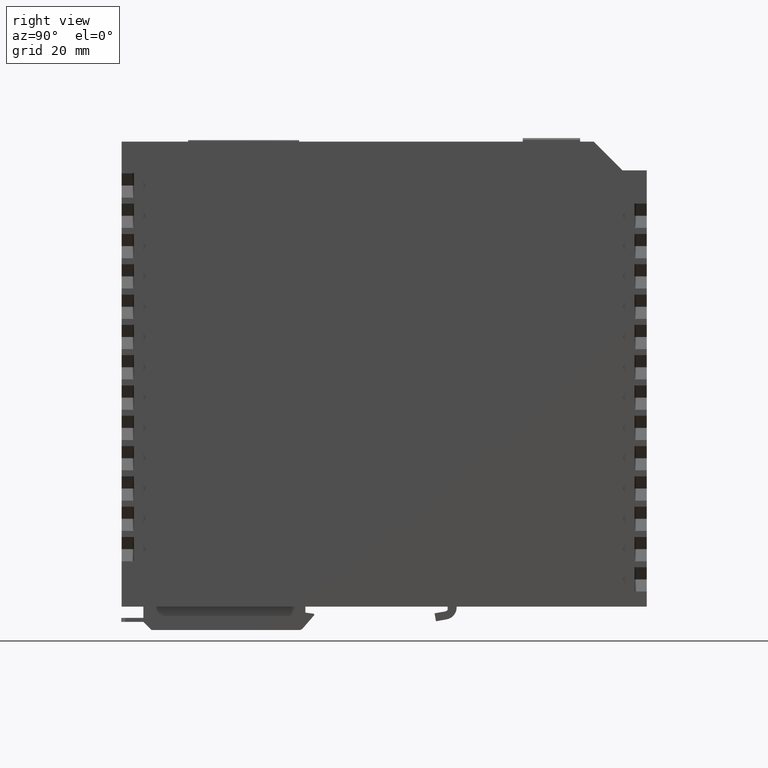
[diagram: clean part render]
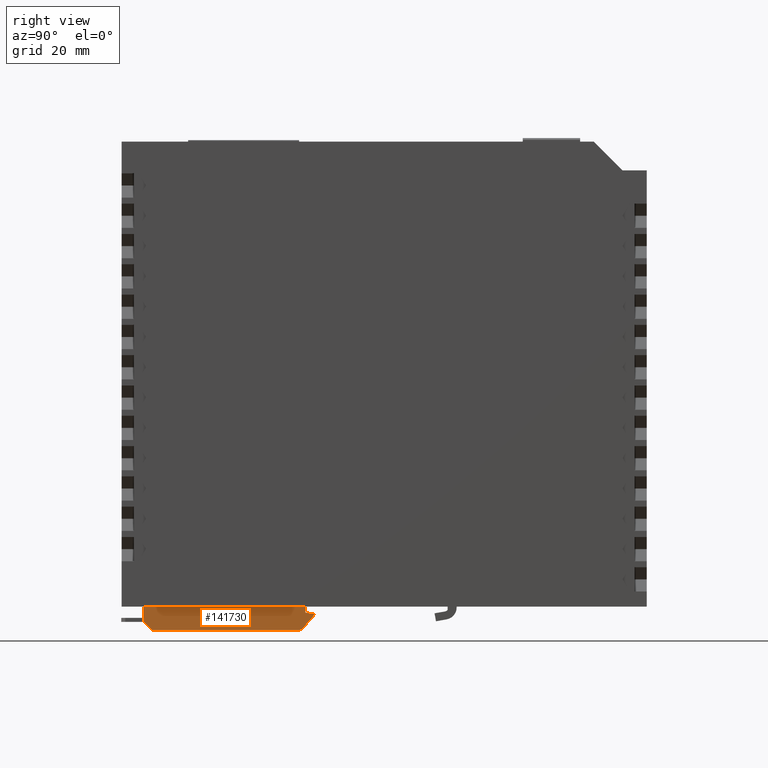
[diagram: same view with one face highlighted and labeled with its STEP entity id]
A machine part, right view. The second image highlights one B-rep face of the part: STEP entity #141730.
In plain terms, the highlighted face is a freeform B-spline surface patch.
Its self-contained STEP definition (entity closure, byte-faithful):
#54140=CARTESIAN_POINT('',(27.0000000000004,-528.747496616264,-114.));
#54150=CARTESIAN_POINT('',(27.0000000000004,425.538621778944,-114.));
#54160=B_SPLINE_CURVE_WITH_KNOTS('',1,(#54140,#54150),.UNSPECIFIED.,.F.,
.F.,(2,2),(-469.143059197604,485.143059197604),.UNSPECIFIED.);
#54170=CARTESIAN_POINT('',(27.0000000000004,-59.60443741866,-114.));
#54180=VERTEX_POINT('',#54170);
#54190=CARTESIAN_POINT('',(27.0000000000004,-19.5,-114.));
#54200=VERTEX_POINT('',#54190);
#54210=EDGE_CURVE('',#54180,#54200,#54160,.T.);
#132640=CARTESIAN_POINT('',(3.99999999990036,-20.2053255768933,
-119.426547152128));
#132650=CARTESIAN_POINT('',(7.9999999999337,-20.2053255768933,
-119.426547152128));
#132660=CARTESIAN_POINT('',(11.999999999967,-20.2053255768933,
-119.426547152128));
#132670=CARTESIAN_POINT('',(20.0000000000337,-20.2053255768933,
-119.426547152128));
#132680=CARTESIAN_POINT('',(24.0000000000671,-20.2053255768933,
-119.426547152128));
#132690=CARTESIAN_POINT('',(28.0000000001004,-20.2053255768933,
-119.426547152128));
#132700=CARTESIAN_POINT('',(3.99999999990033,-20.3983270335861,
-119.649705086431));
#132710=CARTESIAN_POINT('',(7.99999999993366,-20.3983270335861,
-119.649705086431));
#132720=CARTESIAN_POINT('',(11.999999999967,-20.3983270335861,
-119.649705086431));
#132730=CARTESIAN_POINT('',(20.0000000000337,-20.3983270335861,
-119.649705086431));
#132740=CARTESIAN_POINT('',(24.0000000000671,-20.3983270335861,
-119.649705086431));
#132750=CARTESIAN_POINT('',(28.0000000001004,-20.3983270335861,
-119.649705086431));
#132760=CARTESIAN_POINT('',(3.99999999990033,-20.6666480302474,
-119.772395219201));
#132770=CARTESIAN_POINT('',(7.99999999993367,-20.6666480302474,
-119.772395219201));
#132780=CARTESIAN_POINT('',(11.999999999967,-20.6666480302474,
-119.772395219201));
#132790=CARTESIAN_POINT('',(20.0000000000337,-20.6666480302474,
-119.772395219201));
#132800=CARTESIAN_POINT('',(24.0000000000671,-20.6666480302474,
-119.772395219201));
#132810=CARTESIAN_POINT('',(28.0000000001004,-20.6666480302474,
-119.772395219201));
#132820=CARTESIAN_POINT('',(3.99999999990037,-20.9616887493495,
-119.772395219201));
#132830=CARTESIAN_POINT('',(7.99999999993371,-20.9616887493495,
-119.772395219201));
#132840=CARTESIAN_POINT('',(11.999999999967,-20.9616887493495,
-119.772395219201));
#132850=CARTESIAN_POINT('',(20.0000000000337,-20.9616887493495,
-119.772395219201));
#132860=CARTESIAN_POINT('',(24.0000000000671,-20.9616887493495,
-119.772395219201));
#132870=CARTESIAN_POINT('',(28.0000000001004,-20.9616887493495,
-119.772395219201));
#132880=(BOUNDED_SURFACE() B_SPLINE_SURFACE(3,3,((#132640,#132700,
#132760,#132820),(#132650,#132710,#132770,#132830),(#132660,#132720,
#132780,#132840),(#132670,#132730,#132790,#132850),(#132680,#132740,
#132800,#132860),(#132690,#132750,#132810,#132870)),.UNSPECIFIED.,.F.,
.F.,.F.) B_SPLINE_SURFACE_WITH_KNOTS((4,2,4),(4,4),(40.1796465455698,
52.1796465456698,64.1796465457699),(0.,1.),.UNSPECIFIED.) 
GEOMETRIC_REPRESENTATION_ITEM() RATIONAL_B_SPLINE_SURFACE(((1.,
0.939624780104778,0.939624780104778,1.),(1.,0.939624780104778,
0.939624780104778,1.),(1.,0.939624780104777,0.939624780104777,1.),(1.,
0.939624780104776,0.939624780104776,1.),(1.,0.939624780104776,
0.939624780104776,1.),(1.,0.939624780104776,0.939624780104776,1.))) 
REPRESENTATION_ITEM('') SURFACE());
#133220=CARTESIAN_POINT('',(27.0000000000004,-20.9616887493495,
-119.772395219201));
#133230=VERTEX_POINT('',#133220);
#133260=CARTESIAN_POINT('',(27.0000000000004,-528.747496616264,
356.370663978403));
#133270=CARTESIAN_POINT('',(27.0000000000004,425.538621778944,
356.370663978403));
#133280=CARTESIAN_POINT('',(27.0000000000004,-528.747496616264,
-588.915454416804));
#133290=CARTESIAN_POINT('',(27.0000000000004,425.538621778944,
-588.915454416804));
#133300=B_SPLINE_SURFACE_WITH_KNOTS('',1,1,((#133260,#133280),(#133270,
#133290)),.UNSPECIFIED.,.F.,.F.,.F.,(2,2),(2,2),(-469.143059197604,
485.143059197604),(-467.643059197604,477.643059197604),.UNSPECIFIED.);
#133310=CARTESIAN_POINT('',(27.0000000000004,-20.9616887493495,
-119.772395219201));
#133320=CARTESIAN_POINT('',(27.0000000000004,-20.8904826533476,
-119.772395219201));
#133330=CARTESIAN_POINT('',(27.0000000000004,-20.8188771702838,
-119.764717332521));
#133340=CARTESIAN_POINT('',(27.0000000000004,-20.749106656404,
-119.749538429666));
#133350=CARTESIAN_POINT('',(27.0000000000004,-20.6794782370159,
-119.734390440136));
#133360=CARTESIAN_POINT('',(27.0000000000004,-20.6114546577506,
-119.711770974333));
#133370=CARTESIAN_POINT('',(27.0000000000004,-20.5465442061215,
-119.682150685372));
#133380=CARTESIAN_POINT('',(27.0000000000004,-20.481856599467,
-119.652632086236));
#133390=CARTESIAN_POINT('',(27.0000000000004,-20.419863552162,
-119.615959577434));
#133400=CARTESIAN_POINT('',(27.0000000000004,-20.362279654399,
-119.572838057191));
#133410=CARTESIAN_POINT('',(27.0000000000004,-20.3047146630363,
-119.529730694947));
#133420=CARTESIAN_POINT('',(27.0000000000004,-20.251901784006,
-119.480400891602));
#133430=CARTESIAN_POINT('',(27.0000000000004,-20.2053255768933,
-119.426547152128));
#133440=B_SPLINE_CURVE_WITH_KNOTS('',3,(#133310,#133320,#133330,#133340,
#133350,#133360,#133370,#133380,#133390,#133400,#133410,#133420,#133430)
,.UNSPECIFIED.,.F.,.F.,(4,3,3,3,4),(0.,0.214216695524372,
0.428101678621379,0.642762681892129,0.857735493942179),.UNSPECIFIED.);
#133450=SURFACE_CURVE('',#133440,(#132880,#133300),.CURVE_3D.);
#133460=CARTESIAN_POINT('',(27.0000000000004,-20.2053255768933,
-119.426547152128));
#133470=VERTEX_POINT('',#133460);
#133480=EDGE_CURVE('',#133230,#133470,#133450,.T.);
#133620=CARTESIAN_POINT('',(-17.7371265135795,-2.47962952610657,
-98.9312110931529));
#133630=CARTESIAN_POINT('',(-17.7371265135795,-35.0788608349334,
-136.624072294448));
#133640=CARTESIAN_POINT('',(28.7371265135803,-2.47962952610657,
-98.9312110931529));
#133650=CARTESIAN_POINT('',(28.7371265135803,-35.0788608349334,
-136.624072294448));
#133660=B_SPLINE_SURFACE_WITH_KNOTS('',1,1,((#133620,#133640),(#133630,
#133650)),.UNSPECIFIED.,.F.,.F.,.F.,(2,2),(2,2),(-24.9171711247142,
24.9171711247142),(-23.2371265135799,23.2371265135799),.UNSPECIFIED.);
#134060=CARTESIAN_POINT('',(27.0000000000004,-17.527418305749,
-116.330216869829));
#134070=CARTESIAN_POINT('',(27.0000000000004,-17.750577245011,
-116.588244393354));
#134080=CARTESIAN_POINT('',(27.0000000000004,-17.973736184273,
-116.846271916879));
#134090=CARTESIAN_POINT('',(27.0000000000004,-18.1968951235351,
-117.104299440404));
#134100=CARTESIAN_POINT('',(27.0000000000004,-18.4200540627971,
-117.362326963928));
#134110=CARTESIAN_POINT('',(27.0000000000004,-18.6432130020591,
-117.620354487453));
#134120=CARTESIAN_POINT('',(27.0000000000004,-18.8663719413211,
-117.878382010978));
#134130=CARTESIAN_POINT('',(27.0000000000004,-19.0895308805832,
-118.136409534503));
#134140=CARTESIAN_POINT('',(27.0000000000004,-19.3126898198452,
-118.394437058028));
#134150=CARTESIAN_POINT('',(27.0000000000004,-19.5358487591072,
-118.652464581553));
#134160=CARTESIAN_POINT('',(27.0000000000004,-19.7590076983693,
-118.910492105078));
#134170=CARTESIAN_POINT('',(27.0000000000004,-19.9821666376313,
-119.168519628603));
#134180=CARTESIAN_POINT('',(27.0000000000004,-20.2053255768933,
-119.426547152128));
#134190=B_SPLINE_CURVE_WITH_KNOTS('',3,(#134060,#134070,#134080,#134090,
#134100,#134110,#134120,#134130,#134140,#134150,#134160,#134170,#134180)
,.UNSPECIFIED.,.F.,.F.,(4,3,3,3,4),(0.,1.02342710322749,2.04685420645491
,3.07028130968236,4.09370841290981),.UNSPECIFIED.);
#134200=SURFACE_CURVE('',#134190,(#133660,#133300),.CURVE_3D.);
#134210=CARTESIAN_POINT('',(27.0000000000004,-17.527418305749,
-116.330216869829));
#134220=VERTEX_POINT('',#134210);
#134230=EDGE_CURVE('',#134220,#133470,#134200,.T.);
#134250=CARTESIAN_POINT('',(27.0000000000004,-17.527418305749,
-116.330216869829));
#134260=CARTESIAN_POINT('',(27.0000000000004,-17.5128971789539,
-116.313426816972));
#134270=CARTESIAN_POINT('',(27.0000000000004,-17.4983760521589,
-116.296636764115));
#134280=CARTESIAN_POINT('',(27.0000000000004,-17.4838549253639,
-116.279846711258));
#134290=CARTESIAN_POINT('',(27.0000000000004,-17.4693337985689,
-116.263056658401));
#134300=CARTESIAN_POINT('',(27.0000000000004,-17.4548126717738,
-116.246266605544));
#134310=CARTESIAN_POINT('',(27.0000000000004,-17.4402915449788,
-116.229476552687));
#134320=CARTESIAN_POINT('',(27.0000000000004,-17.4257704181838,
-116.21268649983));
#134330=CARTESIAN_POINT('',(27.0000000000004,-17.4112492913887,
-116.195896446973));
#134340=CARTESIAN_POINT('',(27.0000000000004,-17.3967281645937,
-116.179106394116));
#134350=CARTESIAN_POINT('',(27.0000000000004,-17.3822070377987,
-116.162316341259));
#134360=CARTESIAN_POINT('',(27.0000000000004,-17.3676859110037,
-116.145526288402));
#134370=CARTESIAN_POINT('',(27.0000000000004,-17.3531647842087,
-116.128736235545));
#134380=B_SPLINE_CURVE_WITH_KNOTS('',3,(#134250,#134260,#134270,#134280,
#134290,#134300,#134310,#134320,#134330,#134340,#134350,#134360,#134370)
,.UNSPECIFIED.,.F.,.F.,(4,3,3,3,4),(0.,0.0665952024174744,
0.133190404835041,0.199785607252496,0.266380809669983),.UNSPECIFIED.);
#134390=SURFACE_CURVE('',#134380,(#133660,#133300),.CURVE_3D.);
#134400=CARTESIAN_POINT('',(27.0000000000004,-17.3531647841606,
-116.128736235581));
#134410=VERTEX_POINT('',#134400);
#134420=EDGE_CURVE('',#134220,#134410,#134390,.T.);
#134600=CARTESIAN_POINT('',(31.,-19.5,-115.));
#134610=DIRECTION('',(0.,1.,0.));
#134620=DIRECTION('',(0.,0.,1.));
#134630=AXIS2_PLACEMENT_3D('',#134600,#134610,#134620);
#134640=PLANE('',#134630);
#134850=CARTESIAN_POINT('',(-39.3005842289874,-63.3987927347615,
-109.486801312705));
#134860=CARTESIAN_POINT('',(-39.3005842289874,26.4169405383915,
-121.734401303996));
#134870=CARTESIAN_POINT('',(50.3005842289881,-63.3987927347615,
-109.486801312705));
#134880=CARTESIAN_POINT('',(50.3005842289881,26.4169405383915,
-121.734401303996));
#134890=B_SPLINE_SURFACE_WITH_KNOTS('',1,1,((#134850,#134870),(#134860,
#134880)),.UNSPECIFIED.,.F.,.F.,.F.,(2,2),(2,2),(-45.3234752885539,
45.3234752885539),(-44.8005842289878,44.8005842289878),.UNSPECIFIED.);
#135050=CARTESIAN_POINT('',(27.0000000000004,-19.5000000000001,
-115.473000321745));
#135060=VERTEX_POINT('',#135050);
#135090=CARTESIAN_POINT('',(27.0000000000004,-19.5,-114.));
#135100=CARTESIAN_POINT('',(27.0000000000004,-19.5,-114.122750026812));
#135110=CARTESIAN_POINT('',(27.0000000000004,-19.5,-114.245500053624));
#135120=CARTESIAN_POINT('',(27.0000000000004,-19.5,-114.368250080436));
#135130=CARTESIAN_POINT('',(27.0000000000004,-19.5,-114.491000107248));
#135140=CARTESIAN_POINT('',(27.0000000000004,-19.5,-114.613750134061));
#135150=CARTESIAN_POINT('',(27.0000000000004,-19.5,-114.736500160873));
#135160=CARTESIAN_POINT('',(27.0000000000004,-19.5,-114.859250187685));
#135170=CARTESIAN_POINT('',(27.0000000000004,-19.5,-114.982000214497));
#135180=CARTESIAN_POINT('',(27.0000000000004,-19.5,-115.104750241309));
#135190=CARTESIAN_POINT('',(27.0000000000004,-19.5,-115.227500268121));
#135200=CARTESIAN_POINT('',(27.0000000000004,-19.5,-115.350250294933));
#135210=CARTESIAN_POINT('',(27.0000000000004,-19.5,-115.473000321745));
#135220=B_SPLINE_CURVE_WITH_KNOTS('',3,(#135090,#135100,#135110,#135120,
#135130,#135140,#135150,#135160,#135170,#135180,#135190,#135200,#135210)
,.UNSPECIFIED.,.F.,.F.,(4,3,3,3,4),(0.,0.368250080436297,
0.736500160872609,1.10475024130889,1.4730003217452),.UNSPECIFIED.);
#135230=SURFACE_CURVE('',#135220,(#133300,#134640),.CURVE_3D.);
#135240=EDGE_CURVE('',#54200,#135060,#135230,.T.);
#135650=CARTESIAN_POINT('',(-3.248672,-17.30443741866,-115.997905849001)
);
#135660=DIRECTION('',(-0.,-1.,-6.975348565354E-14));
#135670=DIRECTION('',(0.,-6.975348565354E-14,1.));
#135680=AXIS2_PLACEMENT_3D('',#135650,#135660,#135670);
#135690=PLANE('',#135680);
#135760=CARTESIAN_POINT('',(27.0000000000004,-17.30443741866,
-115.946973431136));
#135770=VERTEX_POINT('',#135760);
#136030=CARTESIAN_POINT('',(27.0000000000004,-17.30443741866,
-115.997905849001));
#136040=VERTEX_POINT('',#136030);
#136070=CARTESIAN_POINT('',(27.0000000000004,-17.30443741866,
-115.997905849001));
#136080=CARTESIAN_POINT('',(27.0000000000004,-17.30443741866,
-115.993661480845));
#136090=CARTESIAN_POINT('',(27.0000000000004,-17.30443741866,
-115.98941711269));
#136100=CARTESIAN_POINT('',(27.0000000000004,-17.30443741866,
-115.985172744535));
#136110=CARTESIAN_POINT('',(27.0000000000004,-17.30443741866,
-115.980928376379));
#136120=CARTESIAN_POINT('',(27.0000000000004,-17.30443741866,
-115.976684008224));
#136130=CARTESIAN_POINT('',(27.0000000000004,-17.30443741866,
-115.972439640068));
#136140=CARTESIAN_POINT('',(27.0000000000004,-17.30443741866,
-115.968195271913));
#136150=CARTESIAN_POINT('',(27.0000000000004,-17.30443741866,
-115.963950903758));
#136160=CARTESIAN_POINT('',(27.0000000000004,-17.30443741866,
-115.959706535602));
#136170=CARTESIAN_POINT('',(27.0000000000004,-17.30443741866,
-115.955462167447));
#136180=CARTESIAN_POINT('',(27.0000000000004,-17.30443741866,
-115.951217799291));
#136190=CARTESIAN_POINT('',(27.0000000000004,-17.30443741866,
-115.946973431136));
#136200=B_SPLINE_CURVE_WITH_KNOTS('',3,(#136070,#136080,#136090,#136100,
#136110,#136120,#136130,#136140,#136150,#136160,#136170,#136180,#136190)
,.UNSPECIFIED.,.F.,.F.,(4,3,3,3,4),(0.,0.0127331044661929,
0.0254662089323858,0.0381993133985929,0.0509324178647432),.UNSPECIFIED.)
;
#136210=SURFACE_CURVE('',#136200,(#133300,#135690),.CURVE_3D.);
#136220=EDGE_CURVE('',#136040,#135770,#136210,.T.);
#136440=CARTESIAN_POINT('',(-124.180748853957,-164.685186272617,
-119.772395219201));
#136450=CARTESIAN_POINT('',(-124.180748853957,108.219060104637,
-119.772395219201));
#136460=CARTESIAN_POINT('',(135.180748853957,-164.685186272617,
-119.772395219201));
#136470=CARTESIAN_POINT('',(135.180748853957,108.219060104637,
-119.772395219201));
#136480=B_SPLINE_SURFACE_WITH_KNOTS('',1,1,((#136440,#136460),(#136450,
#136470)),.UNSPECIFIED.,.F.,.F.,.F.,(2,2),(2,2),(-136.45212318859,
136.45212318859),(-129.680748853957,129.680748853957),.UNSPECIFIED.);
#136920=CARTESIAN_POINT('',(27.0000000000004,-57.60443741866,
-119.772395219201));
#136930=VERTEX_POINT('',#136920);
#136960=CARTESIAN_POINT('',(27.0000000000004,-20.9616887493495,
-119.772395219201));
#136970=CARTESIAN_POINT('',(27.0000000000004,-24.0152511384588,
-119.772395219201));
#136980=CARTESIAN_POINT('',(27.0000000000004,-27.0688135275678,
-119.772395219201));
#136990=CARTESIAN_POINT('',(27.0000000000004,-30.1223759166771,
-119.772395219201));
#137000=CARTESIAN_POINT('',(27.0000000000004,-33.1759383057864,
-119.772395219201));
#137010=CARTESIAN_POINT('',(27.0000000000004,-36.2295006948956,
-119.772395219201));
#137020=CARTESIAN_POINT('',(27.0000000000004,-39.2830630840048,
-119.772395219201));
#137030=CARTESIAN_POINT('',(27.0000000000004,-42.3366254731141,
-119.772395219201));
#137040=CARTESIAN_POINT('',(27.0000000000004,-45.3901878622232,
-119.772395219201));
#137050=CARTESIAN_POINT('',(27.0000000000004,-48.4437502513324,
-119.772395219201));
#137060=CARTESIAN_POINT('',(27.0000000000004,-51.4973126404418,
-119.772395219201));
#137070=CARTESIAN_POINT('',(27.0000000000004,-54.5508750295508,
-119.772395219201));
#137080=CARTESIAN_POINT('',(27.0000000000004,-57.6044374186601,
-119.772395219201));
#137090=B_SPLINE_CURVE_WITH_KNOTS('',3,(#136960,#136970,#136980,#136990,
#137000,#137010,#137020,#137030,#137040,#137050,#137060,#137070,#137080)
,.UNSPECIFIED.,.F.,.F.,(4,3,3,3,4),(0.,9.16068716732764,18.3213743346553
,27.482061501983,36.6427486693106),.UNSPECIFIED.);
#137100=SURFACE_CURVE('',#137090,(#133300,#136480),.CURVE_3D.);
#137110=EDGE_CURVE('',#133230,#136930,#137100,.T.);
#140700=CARTESIAN_POINT('',(27.0000000000004,-17.4774147777144,
-115.7488073975));
#140710=CARTESIAN_POINT('',(27.0000000000004,-17.5076683294166,
-115.744681913177));
#140720=CARTESIAN_POINT('',(27.0000000000004,-17.5379218811186,
-115.740556428854));
#140730=CARTESIAN_POINT('',(27.0000000000004,-17.5681754328208,
-115.736430944531));
#140740=CARTESIAN_POINT('',(27.0000000000004,-17.5984289845228,
-115.732305460209));
#140750=CARTESIAN_POINT('',(27.0000000000004,-17.6286825362251,
-115.728179975886));
#140760=CARTESIAN_POINT('',(27.0000000000004,-17.6589360879272,
-115.724054491563));
#140770=CARTESIAN_POINT('',(27.0000000000004,-17.6891896396293,
-115.71992900724));
#140780=CARTESIAN_POINT('',(27.0000000000004,-17.7194431913314,
-115.715803522917));
#140790=CARTESIAN_POINT('',(27.0000000000004,-17.7496967430335,
-115.711678038594));
#140800=CARTESIAN_POINT('',(27.0000000000004,-17.7799502947357,
-115.707552554272));
#140810=CARTESIAN_POINT('',(27.0000000000004,-17.8102038464377,
-115.703427069949));
#140820=CARTESIAN_POINT('',(27.0000000000004,-17.8404573981399,
-115.699301585626));
#140830=B_SPLINE_CURVE_WITH_KNOTS('',3,(#140700,#140710,#140720,#140730,
#140740,#140750,#140760,#140770,#140780,#140790,#140800,#140810,#140820)
,.UNSPECIFIED.,.F.,.F.,(4,3,3,3,4),(0.,0.0916006173746704,
0.183201234749312,0.274801852123969,0.36640246949864),.UNSPECIFIED.);
#140840=SURFACE_CURVE('',#140830,(#134890,#133300),.CURVE_3D.);
#140850=CARTESIAN_POINT('',(27.0000000000004,-17.4774147777145,
-115.7488073975));
#140860=VERTEX_POINT('',#140850);
#140870=CARTESIAN_POINT('',(27.0000000000004,-17.8404573981399,
-115.699301585626));
#140880=VERTEX_POINT('',#140870);
#140890=EDGE_CURVE('',#140860,#140880,#140840,.T.);
#140900=ORIENTED_EDGE('',*,*,#140890,.T.);
#140910=CARTESIAN_POINT('',(-3.248672,-17.50443741866,-115.946973431101)
);
#140920=DIRECTION('',(1.,0.,0.));
#140930=DIRECTION('',(0.,1.,-7.105427357601E-14));
#140940=AXIS2_PLACEMENT_3D('',#140910,#140920,#140930);
#140950=CYLINDRICAL_SURFACE('',#140940,0.2);
#140960=CARTESIAN_POINT('',(27.0000000000004,-17.4774147777132,
-115.748807397492));
#140970=CARTESIAN_POINT('',(27.0000000000004,-17.4536855744109,
-115.752043197942));
#140980=CARTESIAN_POINT('',(27.0000000000004,-17.4305693314175,
-115.759585873108));
#140990=CARTESIAN_POINT('',(27.0000000000004,-17.4095423085822,
-115.770919694746));
#141000=CARTESIAN_POINT('',(27.0000000000004,-17.3885023985741,
-115.782260462727));
#141010=CARTESIAN_POINT('',(27.0000000000004,-17.3695787933246,
-115.797338109543));
#141020=CARTESIAN_POINT('',(27.0000000000004,-17.3537734765152,
-115.815442535296));
#141030=CARTESIAN_POINT('',(27.0000000000004,-17.337981724376,
-115.833531423205));
#141040=CARTESIAN_POINT('',(27.0000000000004,-17.3255981347865,
-115.854299883746));
#141050=CARTESIAN_POINT('',(27.0000000000004,-17.3171941901687,
-115.876688486877));
#141060=CARTESIAN_POINT('',(27.0000000000004,-17.3088030908805,
-115.899042869294));
#141070=CARTESIAN_POINT('',(27.0000000000004,-17.3044374186558,
-115.92302817075));
#141080=CARTESIAN_POINT('',(27.0000000000004,-17.30443741866,
-115.946973431136));
#141090=B_SPLINE_CURVE_WITH_KNOTS('',3,(#140960,#140970,#140980,#140990,
#141000,#141010,#141020,#141030,#141040,#141050,#141060,#141070,#141080)
,.UNSPECIFIED.,.F.,.F.,(4,3,3,3,4),(0.,0.0717680876867431,
0.143513536018366,0.215235231301811,0.28705372261083),.UNSPECIFIED.);
#141100=SURFACE_CURVE('',#141090,(#140950,#133300),.CURVE_3D.);
#141110=EDGE_CURVE('',#140860,#135770,#141100,.T.);
#141120=ORIENTED_EDGE('',*,*,#141110,.F.);
#141130=ORIENTED_EDGE('',*,*,#136220,.T.);
#141140=CARTESIAN_POINT('',(-3.248672,-17.50443741866,-115.997905849001)
);
#141150=DIRECTION('',(1.,0.,0.));
#141160=DIRECTION('',(0.,0.756363172452118,-0.654151932931615));
#141170=AXIS2_PLACEMENT_3D('',#141140,#141150,#141160);
#141180=CYLINDRICAL_SURFACE('',#141170,0.2);
#141190=CARTESIAN_POINT('',(27.0000000000004,-17.30443741866,
-115.997905849001));
#141200=CARTESIAN_POINT('',(27.0000000000004,-17.30443741866,
-116.009757652731));
#141210=CARTESIAN_POINT('',(27.0000000000004,-17.3054982579728,
-116.021667169953));
#141220=CARTESIAN_POINT('',(27.0000000000004,-17.3076067055743,
-116.0333694978));
#141230=CARTESIAN_POINT('',(27.0000000000004,-17.3097146816283,
-116.04506920846));
#141240=CARTESIAN_POINT('',(27.0000000000004,-17.3128533767427,
-116.056527697193));
#141250=CARTESIAN_POINT('',(27.0000000000004,-17.3169940185488,
-116.067655198513));
#141260=CARTESIAN_POINT('',(27.0000000000004,-17.321124694396,
-116.078755917458));
#141270=CARTESIAN_POINT('',(27.0000000000004,-17.3262573130391,
-116.089525903543));
#141280=CARTESIAN_POINT('',(27.0000000000004,-17.3323362055279,
-116.099793887741));
#141290=CARTESIAN_POINT('',(27.0000000000004,-17.3384121719146,
-116.1100569294));
#141300=CARTESIAN_POINT('',(27.0000000000004,-17.3454120707073,
-116.119772160646));
#141310=CARTESIAN_POINT('',(27.0000000000004,-17.3531647841657,
-116.128736235583));
#141320=B_SPLINE_CURVE_WITH_KNOTS('',3,(#141190,#141200,#141210,#141220,
#141230,#141240,#141250,#141260,#141270,#141280,#141290,#141300,#141310)
,.UNSPECIFIED.,.F.,.F.,(4,3,3,3,4),(0.,0.0356521684182232,
0.0712467128249102,0.106906822034514,0.14261216656691),.UNSPECIFIED.);
#141330=SURFACE_CURVE('',#141320,(#141180,#133300),.CURVE_3D.);
#141340=EDGE_CURVE('',#136040,#134410,#141330,.T.);
#141350=ORIENTED_EDGE('',*,*,#141340,.F.);
#141360=ORIENTED_EDGE('',*,*,#134420,.T.);
#141370=ORIENTED_EDGE('',*,*,#134230,.F.);
#141380=ORIENTED_EDGE('',*,*,#133480,.T.);
#141390=ORIENTED_EDGE('',*,*,#137110,.F.);
#141400=CARTESIAN_POINT('',(27.0000000000004,52.8660720162995,
-230.24290465416));
#141410=CARTESIAN_POINT('',(27.0000000000004,-169.130156415218,
-8.24667622264245));
#141420=B_SPLINE_CURVE_WITH_KNOTS('',1,(#141400,#141410),.UNSPECIFIED.,
.F.,.F.,(2,2),(-156.975038521754,156.975038521754),.UNSPECIFIED.);
#141430=CARTESIAN_POINT('',(27.0000000000004,-59.60443741866,
-117.772395219201));
#141440=VERTEX_POINT('',#141430);
#141450=EDGE_CURVE('',#136930,#141440,#141420,.T.);
#141460=ORIENTED_EDGE('',*,*,#141450,.F.);
#141470=CARTESIAN_POINT('',(27.0000000000004,-59.60443741866,
356.370663978403));
#141480=CARTESIAN_POINT('',(27.0000000000004,-59.60443741866,
-588.915454416804));
#141490=B_SPLINE_CURVE_WITH_KNOTS('',1,(#141470,#141480),.UNSPECIFIED.,
.F.,.F.,(2,2),(-467.643059197604,477.643059197604),.UNSPECIFIED.);
#141500=EDGE_CURVE('',#54180,#141440,#141490,.T.);
#141510=ORIENTED_EDGE('',*,*,#141500,.T.);
#141520=ORIENTED_EDGE('',*,*,#54210,.F.);
#141530=ORIENTED_EDGE('',*,*,#135240,.F.);
#141540=CARTESIAN_POINT('',(27.0000000000004,-17.8404573981399,
-115.699301585626));
#141550=CARTESIAN_POINT('',(27.0000000000004,-17.9787526149617,
-115.680443146969));
#141560=CARTESIAN_POINT('',(27.0000000000004,-18.1170478317832,
-115.661584708312));
#141570=CARTESIAN_POINT('',(27.0000000000004,-18.2553430486049,
-115.642726269656));
#141580=CARTESIAN_POINT('',(27.0000000000004,-18.3936382654266,
-115.623867830999));
#141590=CARTESIAN_POINT('',(27.0000000000004,-18.5319334822484,
-115.605009392342));
#141600=CARTESIAN_POINT('',(27.0000000000004,-18.67022869907,
-115.586150953686));
#141610=CARTESIAN_POINT('',(27.0000000000004,-18.8085239158916,
-115.567292515029));
#141620=CARTESIAN_POINT('',(27.0000000000004,-18.9468191327134,
-115.548434076372));
#141630=CARTESIAN_POINT('',(27.0000000000004,-19.085114349535,
-115.529575637715));
#141640=CARTESIAN_POINT('',(27.0000000000004,-19.2234095663567,
-115.510717199059));
#141650=CARTESIAN_POINT('',(27.0000000000004,-19.3617047831783,
-115.491858760402));
#141660=CARTESIAN_POINT('',(27.0000000000004,-19.5,-115.473000321745));
#141670=B_SPLINE_CURVE_WITH_KNOTS('',3,(#141540,#141550,#141560,#141570,
#141580,#141590,#141600,#141610,#141620,#141630,#141640,#141650,#141660)
,.UNSPECIFIED.,.F.,.F.,(4,3,3,3,4),(0.,0.418725291018969,
0.837450582037982,1.25617587305689,1.67490116407589),.UNSPECIFIED.);
#141680=SURFACE_CURVE('',#141670,(#134890,#133300),.CURVE_3D.);
#141690=EDGE_CURVE('',#140880,#135060,#141680,.T.);
#141700=ORIENTED_EDGE('',*,*,#141690,.T.);
#141710=EDGE_LOOP('',(#141700,#141530,#141520,#141510,#141460,#141390,
#141380,#141370,#141360,#141350,#141130,#141120,#140900));
#141720=FACE_OUTER_BOUND('',#141710,.T.);
#141730=ADVANCED_FACE('',(#141720),#133300,.F.);